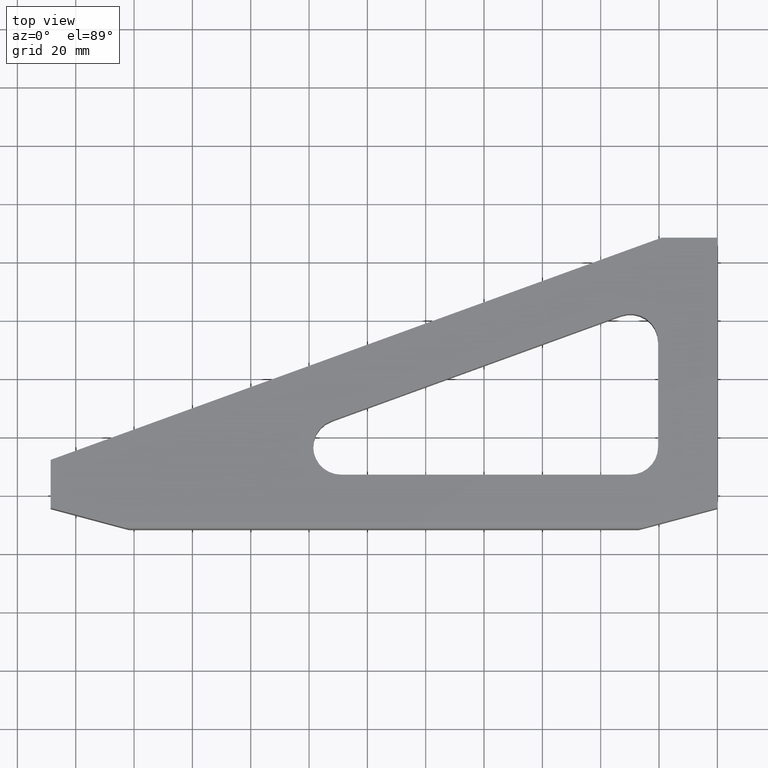
[diagram: clean part render]
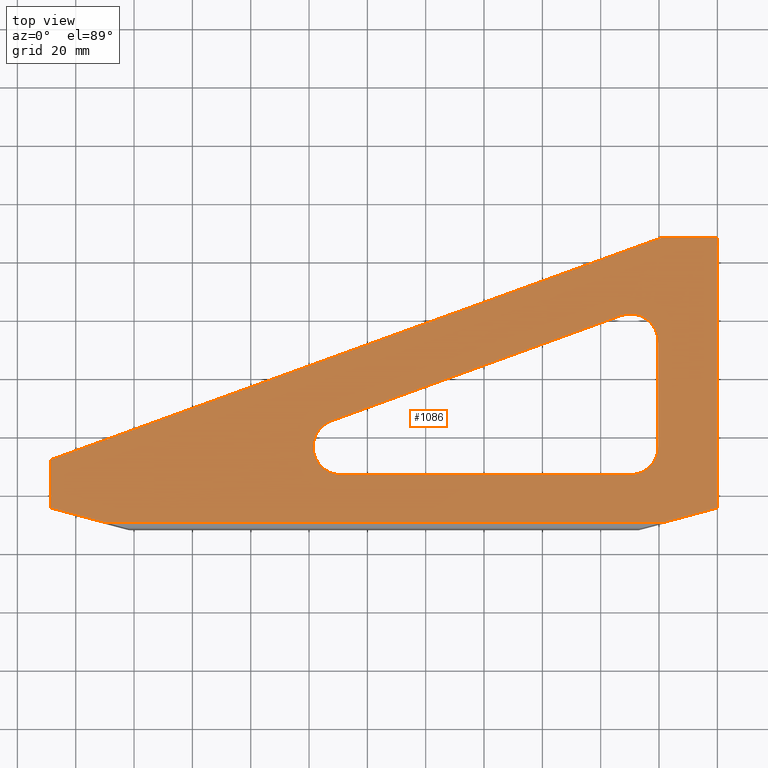
[diagram: same view with one face highlighted and labeled with its STEP entity id]
A machine part, top view. The second image highlights one B-rep face of the part: STEP entity #1086.
In plain terms, the highlighted planar face has unit normal (-0, 0, 1).
Its self-contained STEP definition (entity closure, byte-faithful):
#3 = CARTESIAN_POINT ( 'NONE',  ( -1.174999999999999800, -1.302500000000000200, 0.5000000000000000000 ) ) ;
#10 = DIRECTION ( 'NONE',  ( -1.000000000000000000, 0.0000000000000000000, 0.0000000000000000000 ) ) ;
#15 = ORIENTED_EDGE ( 'NONE', *, *, #974, .T. ) ;
#22 = AXIS2_PLACEMENT_3D ( 'NONE', #123, #470, #134 ) ;
#34 = CARTESIAN_POINT ( 'NONE',  ( -1.306217782649102400, -2.102500000000000000, 0.5000000000000000000 ) ) ;
#46 = DIRECTION ( 'NONE',  ( 0.9659258262890679800, 0.2588190451025216300, 0.0000000000000000000 ) ) ;
#48 = VERTEX_POINT ( 'NONE', #823 ) ;
#50 = CARTESIAN_POINT ( 'NONE',  ( -9.000000000000000000, -1.752499999999999900, 0.5000000000000000000 ) ) ;
#52 = VERTEX_POINT ( 'NONE', #1105 ) ;
#87 = CARTESIAN_POINT ( 'NONE',  ( 0.0000000000000000000, 1.897500000000000000, 0.5000000000000000000 ) ) ;
#98 = CARTESIAN_POINT ( 'NONE',  ( -1.303153648657513900, 0.8451023160722044300, 0.5000000000000000000 ) ) ;
#102 = VECTOR ( 'NONE', #128, 39.37007874015748100 ) ;
#112 = ORIENTED_EDGE ( 'NONE', *, *, #680, .T. ) ;
#114 = AXIS2_PLACEMENT_3D ( 'NONE', #630, #631, #636 ) ;
#123 = CARTESIAN_POINT ( 'NONE',  ( 0.0000000000000000000, 0.0000000000000000000, 0.5000000000000000000 ) ) ;
#128 = DIRECTION ( 'NONE',  ( 1.000000000000000000, 2.538966122798555600E-016, 0.0000000000000000000 ) ) ;
#134 = DIRECTION ( 'NONE',  ( 1.000000000000000000, 0.0000000000000000000, 0.0000000000000000000 ) ) ;
#136 = ORIENTED_EDGE ( 'NONE', *, *, #659, .T. ) ;
#145 = ORIENTED_EDGE ( 'NONE', *, *, #560, .F. ) ;
#171 = EDGE_CURVE ( 'NONE', #1011, #52, #610, .T. ) ;
#187 = CARTESIAN_POINT ( 'NONE',  ( -9.000000000000000000, -1.102500000000000000, 0.5000000000000000000 ) ) ;
#192 = LINE ( 'NONE', #694, #102 ) ;
#198 = ORIENTED_EDGE ( 'NONE', *, *, #483, .F. ) ;
#275 = AXIS2_PLACEMENT_3D ( 'NONE', #919, #921, #916 ) ;
#280 = CARTESIAN_POINT ( 'NONE',  ( -5.455494401226113500, -0.9275000000000001000, 0.5000000000000000000 ) ) ;
#293 = VERTEX_POINT ( 'NONE', #426 ) ;
#299 = EDGE_CURVE ( 'NONE', #836, #1070, #772, .T. ) ;
#311 = ORIENTED_EDGE ( 'NONE', *, *, #334, .T. ) ;
#320 = ORIENTED_EDGE ( 'NONE', *, *, #500, .T. ) ;
#331 = EDGE_LOOP ( 'NONE', ( #633, #406, #935, #747, #145, #515, #198 ) ) ;
#334 = EDGE_CURVE ( 'NONE', #48, #937, #595, .T. ) ;
#335 = CARTESIAN_POINT ( 'NONE',  ( -1.174999999999999800, 0.4926797822640403600, 0.5000000000000000000 ) ) ;
#337 = DIRECTION ( 'NONE',  ( 0.0000000000000000000, 0.0000000000000000000, 1.000000000000000000 ) ) ;
#338 = DIRECTION ( 'NONE',  ( -1.000000000000000000, 0.0000000000000000000, 0.0000000000000000000 ) ) ;
#347 = VERTEX_POINT ( 'NONE', #50 ) ;
#350 = AXIS2_PLACEMENT_3D ( 'NONE', #335, #337, #338 ) ;
#356 = CARTESIAN_POINT ( 'NONE',  ( -9.000000000000000000, -1.752499999999999900, 0.5000000000000000000 ) ) ;
#363 = VERTEX_POINT ( 'NONE', #87 ) ;
#371 = DIRECTION ( 'NONE',  ( -0.9397934234884369700, -0.3417430630867042700, 0.0000000000000000000 ) ) ;
#377 = DIRECTION ( 'NONE',  ( 0.9659258262890675400, -0.2588190451025236800, 0.0000000000000000000 ) ) ;
#397 = EDGE_LOOP ( 'NONE', ( #320, #15, #311, #894, #136, #930, #112 ) ) ;
#406 = ORIENTED_EDGE ( 'NONE', *, *, #749, .F. ) ;
#426 = CARTESIAN_POINT ( 'NONE',  ( -0.7999999999999997100, -0.9275000000000001000, 0.5000000000000000000 ) ) ;
#460 = VERTEX_POINT ( 'NONE', #187 ) ;
#470 = DIRECTION ( 'NONE',  ( -0.0000000000000000000, 0.0000000000000000000, 1.000000000000000000 ) ) ;
#483 = EDGE_CURVE ( 'NONE', #1106, #1011, #819, .T. ) ;
#500 = EDGE_CURVE ( 'NONE', #347, #944, #780, .T. ) ;
#514 = CARTESIAN_POINT ( 'NONE',  ( -8.285738146544257900, -1.943885886817825300, 0.5000000000000000000 ) ) ;
#515 = ORIENTED_EDGE ( 'NONE', *, *, #171, .F. ) ;
#525 = DIRECTION ( 'NONE',  ( 1.000000000000000000, 0.0000000000000000000, 0.0000000000000000000 ) ) ;
#527 = CARTESIAN_POINT ( 'NONE',  ( -5.080494401226112600, -1.302500000000000200, 0.5000000000000000000 ) ) ;
#545 = EDGE_CURVE ( 'NONE', #1070, #857, #769, .T. ) ;
#546 = CIRCLE ( 'NONE', #275, 0.3750000000000002200 ) ;
#560 = EDGE_CURVE ( 'NONE', #52, #836, #626, .T. ) ;
#566 = LINE ( 'NONE', #759, #585 ) ;
#571 = LINE ( 'NONE', #820, #590 ) ;
#575 = LINE ( 'NONE', #731, #634 ) ;
#585 = VECTOR ( 'NONE', #788, 39.37007874015748100 ) ;
#586 = VECTOR ( 'NONE', #856, 39.37007874015748100 ) ;
#590 = VECTOR ( 'NONE', #800, 39.37007874015748100 ) ;
#595 = LINE ( 'NONE', #34, #787 ) ;
#603 = EDGE_CURVE ( 'NONE', #293, #1106, #575, .T. ) ;
#609 = VECTOR ( 'NONE', #371, 39.37007874015748900 ) ;
#610 = LINE ( 'NONE', #98, #609 ) ;
#626 = CIRCLE ( 'NONE', #114, 0.3750000000000002200 ) ;
#630 = CARTESIAN_POINT ( 'NONE',  ( -5.080494401226112600, -0.9275000000000001000, 0.5000000000000000000 ) ) ;
#631 = DIRECTION ( 'NONE',  ( 0.0000000000000000000, 0.0000000000000000000, 1.000000000000000000 ) ) ;
#633 = ORIENTED_EDGE ( 'NONE', *, *, #603, .F. ) ;
#634 = VECTOR ( 'NONE', #737, 39.37007874015748100 ) ;
#636 = DIRECTION ( 'NONE',  ( -1.000000000000000000, 0.0000000000000000000, 0.0000000000000000000 ) ) ;
#659 = EDGE_CURVE ( 'NONE', #363, #898, #566, .T. ) ;
#680 = EDGE_CURVE ( 'NONE', #460, #347, #571, .T. ) ;
#688 = CARTESIAN_POINT ( 'NONE',  ( 4.469960816887839400E-016, -1.752499999999999900, 0.5000000000000000000 ) ) ;
#694 = CARTESIAN_POINT ( 'NONE',  ( 4.935460413216679400E-016, -1.943885886817823000, 0.5000000000000000000 ) ) ;
#696 = EDGE_CURVE ( 'NONE', #937, #363, #866, .T. ) ;
#709 = VECTOR ( 'NONE', #377, 39.37007874015748900 ) ;
#731 = CARTESIAN_POINT ( 'NONE',  ( -0.7999999999999999300, 0.4926797822640404700, 0.5000000000000000000 ) ) ;
#737 = DIRECTION ( 'NONE',  ( -1.923593074469185200E-016, 1.000000000000000000, -0.0000000000000000000 ) ) ;
#747 = ORIENTED_EDGE ( 'NONE', *, *, #299, .F. ) ;
#749 = EDGE_CURVE ( 'NONE', #857, #293, #546, .T. ) ;
#759 = CARTESIAN_POINT ( 'NONE',  ( -0.7500000000000001100, 1.897500000000000000, 0.5000000000000000000 ) ) ;
#769 = LINE ( 'NONE', #527, #1099 ) ;
#772 = CIRCLE ( 'NONE', #841, 0.3750000000000002200 ) ;
#780 = LINE ( 'NONE', #356, #709 ) ;
#787 = VECTOR ( 'NONE', #46, 39.37007874015748900 ) ;
#788 = DIRECTION ( 'NONE',  ( -1.000000000000000000, -0.0000000000000000000, -0.0000000000000000000 ) ) ;
#797 = EDGE_CURVE ( 'NONE', #898, #460, #840, .T. ) ;
#800 = DIRECTION ( 'NONE',  ( 0.0000000000000000000, -1.000000000000000000, 0.0000000000000000000 ) ) ;
#801 = CARTESIAN_POINT ( 'NONE',  ( -0.7500000000000001100, 1.897500000000000000, 0.5000000000000000000 ) ) ;
#818 = CARTESIAN_POINT ( 'NONE',  ( -5.080494401226112600, -0.9275000000000001000, 0.5000000000000000000 ) ) ;
#819 = CIRCLE ( 'NONE', #350, 0.3749999999999999400 ) ;
#820 = CARTESIAN_POINT ( 'NONE',  ( -9.000000000000000000, -1.102500000000000000, 0.5000000000000000000 ) ) ;
#823 = CARTESIAN_POINT ( 'NONE',  ( -0.7142618534557402300, -1.943885886817823300, 0.5000000000000000000 ) ) ;
#836 = VERTEX_POINT ( 'NONE', #280 ) ;
#840 = LINE ( 'NONE', #988, #896 ) ;
#841 = AXIS2_PLACEMENT_3D ( 'NONE', #818, #965, #10 ) ;
#856 = DIRECTION ( 'NONE',  ( -1.224646799147353500E-016, 1.000000000000000000, -0.0000000000000000000 ) ) ;
#857 = VERTEX_POINT ( 'NONE', #3 ) ;
#863 = CARTESIAN_POINT ( 'NONE',  ( 0.0000000000000000000, 1.897500000000000000, 0.5000000000000000000 ) ) ;
#866 = LINE ( 'NONE', #863, #586 ) ;
#871 = PLANE ( 'NONE',  #22 ) ;
#878 = CARTESIAN_POINT ( 'NONE',  ( -0.7999999999999999300, 0.4926797822640404700, 0.5000000000000000000 ) ) ;
#894 = ORIENTED_EDGE ( 'NONE', *, *, #696, .T. ) ;
#896 = VECTOR ( 'NONE', #915, 39.37007874015748100 ) ;
#898 = VERTEX_POINT ( 'NONE', #801 ) ;
#915 = DIRECTION ( 'NONE',  ( -0.9397934234884369700, -0.3417430630867043800, 0.0000000000000000000 ) ) ;
#916 = DIRECTION ( 'NONE',  ( -1.000000000000000000, 0.0000000000000000000, 0.0000000000000000000 ) ) ;
#919 = CARTESIAN_POINT ( 'NONE',  ( -1.174999999999999800, -0.9275000000000001000, 0.5000000000000000000 ) ) ;
#921 = DIRECTION ( 'NONE',  ( 0.0000000000000000000, 0.0000000000000000000, 1.000000000000000000 ) ) ;
#930 = ORIENTED_EDGE ( 'NONE', *, *, #797, .T. ) ;
#935 = ORIENTED_EDGE ( 'NONE', *, *, #545, .F. ) ;
#937 = VERTEX_POINT ( 'NONE', #688 ) ;
#944 = VERTEX_POINT ( 'NONE', #514 ) ;
#965 = DIRECTION ( 'NONE',  ( 0.0000000000000000000, 0.0000000000000000000, 1.000000000000000000 ) ) ;
#974 = EDGE_CURVE ( 'NONE', #944, #48, #192, .T. ) ;
#988 = CARTESIAN_POINT ( 'NONE',  ( -0.7500000000000001100, 1.897500000000000000, 0.5000000000000000000 ) ) ;
#1011 = VERTEX_POINT ( 'NONE', #1015 ) ;
#1015 = CARTESIAN_POINT ( 'NONE',  ( -1.303153648657513900, 0.8451023160722044300, 0.5000000000000000000 ) ) ;
#1024 = FACE_BOUND ( 'NONE', #331, .T. ) ;
#1069 = FACE_OUTER_BOUND ( 'NONE', #397, .T. ) ;
#1070 = VERTEX_POINT ( 'NONE', #1079 ) ;
#1079 = CARTESIAN_POINT ( 'NONE',  ( -5.080494401226112600, -1.302500000000000200, 0.5000000000000000000 ) ) ;
#1086 = ADVANCED_FACE ( 'NONE', ( #1024, #1069 ), #871, .T. ) ;
#1099 = VECTOR ( 'NONE', #525, 39.37007874015748100 ) ;
#1105 = CARTESIAN_POINT ( 'NONE',  ( -5.208648049883626300, -0.5750774661918363100, 0.5000000000000000000 ) ) ;
#1106 = VERTEX_POINT ( 'NONE', #878 ) ;